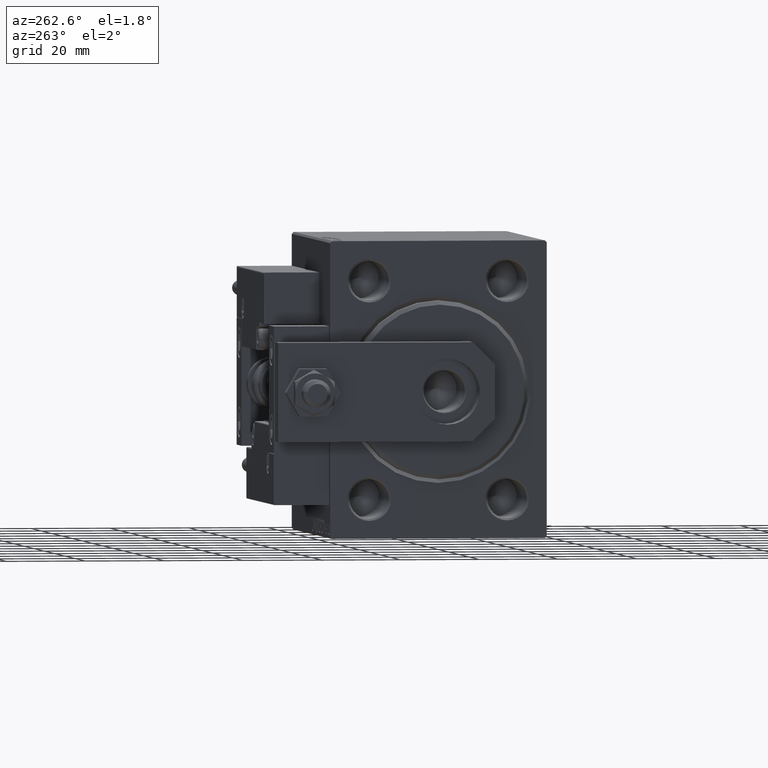
[diagram: clean part render]
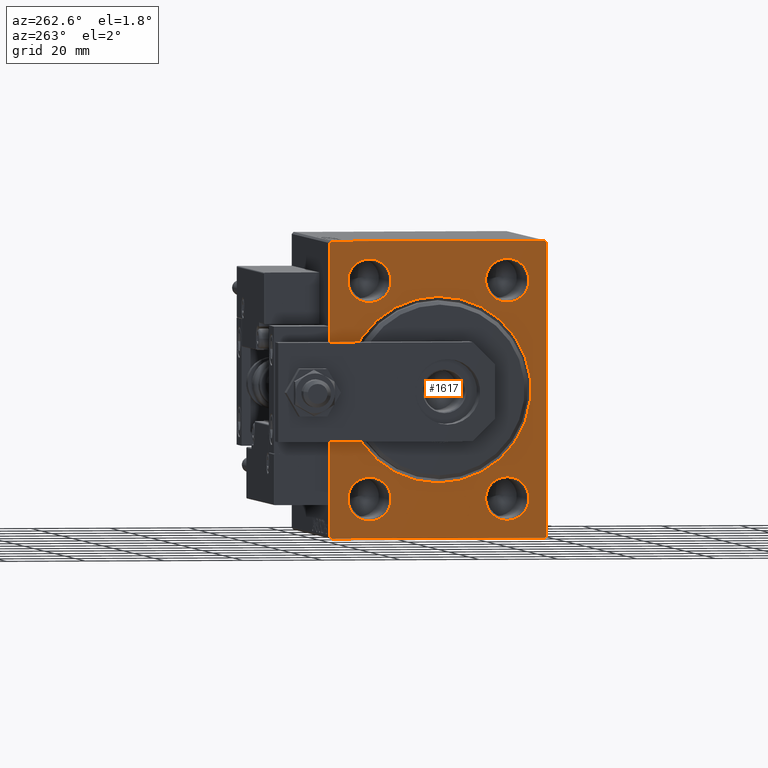
[diagram: same view with one face highlighted and labeled with its STEP entity id]
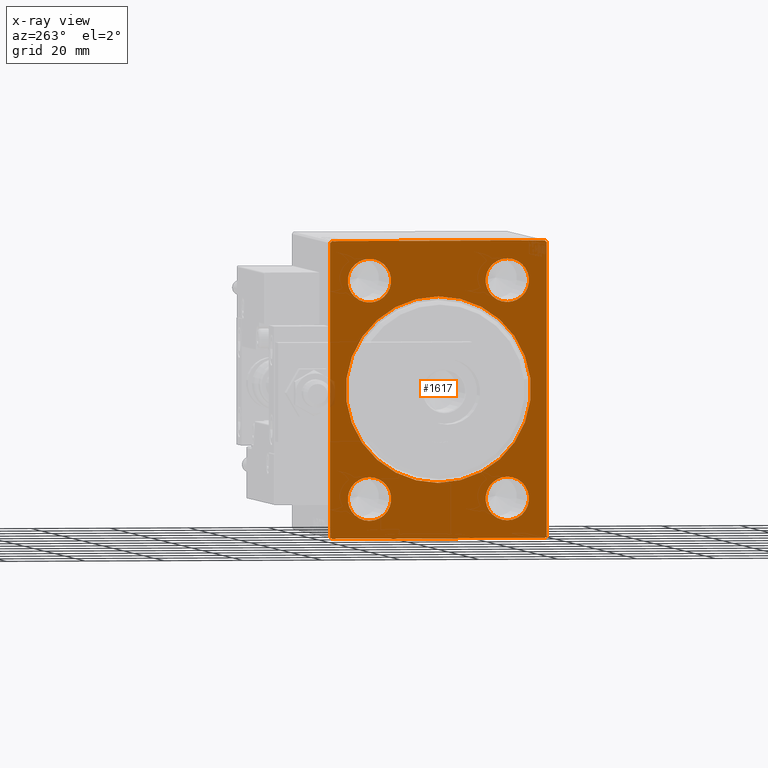
[diagram: x-ray of the same camera — body ghosted, the highlighted face saturated]
A machine part, auxiliary view. The second image highlights one B-rep face of the part: STEP entity #1617.
The next image is the same camera in x-ray: the body ghosted, the highlighted face saturated — about 0% of this face is hidden behind the body in this view.
In plain terms, the highlighted planar face has unit normal (1, 0, 0).
Its self-contained STEP definition (entity closure, byte-faithful):
#394 = EDGE_CURVE ( 'NONE', #22108, #47025, #3828, .T. ) ;
#414 = CARTESIAN_POINT ( 'NONE',  ( 0.000000000000000000, 17.50000000000000000, 27.50000000000000000 ) ) ;
#663 = DIRECTION ( 'NONE',  ( 0.000000000000000000, 0.000000000000000000, -1.000000000000000000 ) ) ;
#668 = DIRECTION ( 'NONE',  ( 0.000000000000000000, 0.000000000000000000, -1.000000000000000000 ) ) ;
#703 = EDGE_CURVE ( 'NONE', #1092, #50315, #22028, .T. ) ;
#710 = ORIENTED_EDGE ( 'NONE', *, *, #39468, .F. ) ;
#1066 = CARTESIAN_POINT ( 'NONE',  ( 0.000000000000000000, 27.00000000000000355, -37.50000000000000000 ) ) ;
#1092 = VERTEX_POINT ( 'NONE', #43969 ) ;
#1216 = CARTESIAN_POINT ( 'NONE',  ( 0.000000000000000000, -17.50000000000000000, 33.00000000000002132 ) ) ;
#1617 = ADVANCED_FACE ( 'NONE', ( #42492, #47404, #15220, #51295, #10808, #19620 ), #34703, .F. ) ;
#1837 = EDGE_CURVE ( 'NONE', #17038, #19998, #32018, .T. ) ;
#1988 = EDGE_CURVE ( 'NONE', #20822, #22173, #9655, .T. ) ;
#2258 = CARTESIAN_POINT ( 'NONE',  ( 0.000000000000000000, -27.49999999999999645, 37.49999999999998579 ) ) ;
#2758 = CARTESIAN_POINT ( 'NONE',  ( 0.000000000000000000, 17.50000000000000000, -21.99999999999997868 ) ) ;
#2997 = DIRECTION ( 'NONE',  ( 0.000000000000000000, 0.000000000000000000, -1.000000000000000000 ) ) ;
#3042 = CARTESIAN_POINT ( 'NONE',  ( 0.000000000000000000, 17.50000000000000000, -27.49999999999999645 ) ) ;
#3453 = VERTEX_POINT ( 'NONE', #50996 ) ;
#3562 = EDGE_CURVE ( 'NONE', #28874, #42873, #9680, .T. ) ;
#3828 = LINE ( 'NONE', #47201, #7904 ) ;
#3956 = ORIENTED_EDGE ( 'NONE', *, *, #30811, .T. ) ;
#4038 = ORIENTED_EDGE ( 'NONE', *, *, #394, .F. ) ;
#4151 = CARTESIAN_POINT ( 'NONE',  ( 0.000000000000000000, 17.50000000000000000, 27.50000000000000000 ) ) ;
#4249 = EDGE_LOOP ( 'NONE', ( #29338, #50350 ) ) ;
#5048 = CARTESIAN_POINT ( 'NONE',  ( 0.000000000000000000, 27.49999999999999645, 37.00000000000001421 ) ) ;
#5438 = AXIS2_PLACEMENT_3D ( 'NONE', #35214, #27168, #11832 ) ;
#6084 = CARTESIAN_POINT ( 'NONE',  ( 0.000000000000000000, -27.49999999999999645, -37.50000000000000000 ) ) ;
#6118 = EDGE_CURVE ( 'NONE', #22173, #20822, #8221, .T. ) ;
#6264 = DIRECTION ( 'NONE',  ( 1.000000000000000000, 0.000000000000000000, 0.000000000000000000 ) ) ;
#6545 = VECTOR ( 'NONE', #9160, 1000.000000000000000 ) ;
#6565 = CARTESIAN_POINT ( 'NONE',  ( 0.000000000000000000, 27.50000000000000355, -37.00000000000000000 ) ) ;
#7660 = DIRECTION ( 'NONE',  ( 1.000000000000000000, 0.000000000000000000, 0.000000000000000000 ) ) ;
#7893 = VERTEX_POINT ( 'NONE', #30202 ) ;
#7904 = VECTOR ( 'NONE', #34496, 1000.000000000000000 ) ;
#8221 = CIRCLE ( 'NONE', #25633, 5.500000000000018652 ) ;
#9160 = DIRECTION ( 'NONE',  ( 0.000000000000000000, -9.251858538542971581E-17, 1.000000000000000000 ) ) ;
#9655 = CIRCLE ( 'NONE', #45206, 5.500000000000018652 ) ;
#9680 = LINE ( 'NONE', #17221, #6545 ) ;
#9691 = EDGE_LOOP ( 'NONE', ( #51104, #3956 ) ) ;
#10212 = CIRCLE ( 'NONE', #20143, 5.500000000000001776 ) ;
#10504 = AXIS2_PLACEMENT_3D ( 'NONE', #46263, #6264, #49893 ) ;
#10564 = CARTESIAN_POINT ( 'NONE',  ( 0.000000000000000000, -17.50000000000000000, -27.49999999999999645 ) ) ;
#10808 = FACE_BOUND ( 'NONE', #40450, .T. ) ;
#11301 = VERTEX_POINT ( 'NONE', #18494 ) ;
#11832 = DIRECTION ( 'NONE',  ( 0.000000000000000000, 0.000000000000000000, -1.000000000000000000 ) ) ;
#12002 = CARTESIAN_POINT ( 'NONE',  ( 0.000000000000000000, -17.50000000000000000, -27.49999999999999645 ) ) ;
#12473 = ORIENTED_EDGE ( 'NONE', *, *, #48640, .T. ) ;
#12565 = CARTESIAN_POINT ( 'NONE',  ( 0.000000000000000000, -17.50000000000000000, 21.99999999999998224 ) ) ;
#13387 = ORIENTED_EDGE ( 'NONE', *, *, #27103, .T. ) ;
#15132 = CARTESIAN_POINT ( 'NONE',  ( 0.000000000000000000, -17.50000000000000000, 27.50000000000000000 ) ) ;
#15220 = FACE_BOUND ( 'NONE', #29397, .T. ) ;
#15840 = ORIENTED_EDGE ( 'NONE', *, *, #16358, .F. ) ;
#15846 = CARTESIAN_POINT ( 'NONE',  ( 0.000000000000000000, 0.000000000000000000, 0.000000000000000000 ) ) ;
#16093 = VERTEX_POINT ( 'NONE', #49104 ) ;
#16261 = AXIS2_PLACEMENT_3D ( 'NONE', #15132, #19531, #51205 ) ;
#16269 = DIRECTION ( 'NONE',  ( 1.000000000000000000, 0.000000000000000000, 0.000000000000000000 ) ) ;
#16358 = EDGE_CURVE ( 'NONE', #24183, #19796, #30317, .T. ) ;
#16640 = EDGE_CURVE ( 'NONE', #11301, #43888, #41771, .T. ) ;
#16718 = CARTESIAN_POINT ( 'NONE',  ( 0.000000000000000000, 27.00000000000001066, 37.50000000000000000 ) ) ;
#16897 = AXIS2_PLACEMENT_3D ( 'NONE', #44053, #40162, #668 ) ;
#17035 = VECTOR ( 'NONE', #44750, 1000.000000000000114 ) ;
#17038 = VERTEX_POINT ( 'NONE', #12565 ) ;
#17221 = CARTESIAN_POINT ( 'NONE',  ( 0.000000000000000000, 27.50000000000000355, -37.50000000000000000 ) ) ;
#17280 = CARTESIAN_POINT ( 'NONE',  ( 0.000000000000000000, 2.877919977996280715E-15, -23.50000000000000355 ) ) ;
#18494 = CARTESIAN_POINT ( 'NONE',  ( 0.000000000000000000, 17.50000000000000000, -33.00000000000001421 ) ) ;
#18777 = AXIS2_PLACEMENT_3D ( 'NONE', #3042, #19146, #23298 ) ;
#19146 = DIRECTION ( 'NONE',  ( 1.000000000000000000, 0.000000000000000000, 0.000000000000000000 ) ) ;
#19236 = VERTEX_POINT ( 'NONE', #1066 ) ;
#19531 = DIRECTION ( 'NONE',  ( 1.000000000000000000, 0.000000000000000000, 0.000000000000000000 ) ) ;
#19620 = FACE_OUTER_BOUND ( 'NONE', #25221, .T. ) ;
#19796 = VERTEX_POINT ( 'NONE', #23070 ) ;
#19998 = VERTEX_POINT ( 'NONE', #1216 ) ;
#20143 = AXIS2_PLACEMENT_3D ( 'NONE', #414, #16269, #663 ) ;
#20514 = DIRECTION ( 'NONE',  ( 0.000000000000000000, 0.000000000000000000, -1.000000000000000000 ) ) ;
#20822 = VERTEX_POINT ( 'NONE', #31701 ) ;
#22028 = CIRCLE ( 'NONE', #31152, 23.50000000000000355 ) ;
#22108 = VERTEX_POINT ( 'NONE', #47035 ) ;
#22173 = VERTEX_POINT ( 'NONE', #47545 ) ;
#22258 = DIRECTION ( 'NONE',  ( 0.000000000000000000, 0.000000000000000000, -1.000000000000000000 ) ) ;
#23070 = CARTESIAN_POINT ( 'NONE',  ( 0.000000000000000000, -27.49999999999999645, -37.00000000000000000 ) ) ;
#23112 = CARTESIAN_POINT ( 'NONE',  ( 0.000000000000000000, -26.99999999999998224, 37.49999999999998579 ) ) ;
#23298 = DIRECTION ( 'NONE',  ( 0.000000000000000000, 0.000000000000000000, -1.000000000000000000 ) ) ;
#23889 = ORIENTED_EDGE ( 'NONE', *, *, #30781, .T. ) ;
#24183 = VERTEX_POINT ( 'NONE', #44829 ) ;
#24549 = EDGE_CURVE ( 'NONE', #22108, #42873, #40853, .T. ) ;
#24721 = CARTESIAN_POINT ( 'NONE',  ( 0.000000000000000000, -26.99999999999999645, -37.50000000000000000 ) ) ;
#24895 = VECTOR ( 'NONE', #39225, 1000.000000000000114 ) ;
#25221 = EDGE_LOOP ( 'NONE', ( #15840, #47504, #4038, #49388, #41512, #13387, #710, #34172 ) ) ;
#25413 = ORIENTED_EDGE ( 'NONE', *, *, #1837, .T. ) ;
#25633 = AXIS2_PLACEMENT_3D ( 'NONE', #12002, #27845, #43692 ) ;
#25752 = CIRCLE ( 'NONE', #34877, 23.50000000000000355 ) ;
#26091 = DIRECTION ( 'NONE',  ( 0.000000000000000000, 1.000000000000000000, 0.000000000000000000 ) ) ;
#26329 = ORIENTED_EDGE ( 'NONE', *, *, #26606, .T. ) ;
#26606 = EDGE_CURVE ( 'NONE', #43888, #11301, #41169, .T. ) ;
#27103 = EDGE_CURVE ( 'NONE', #28874, #19236, #42163, .T. ) ;
#27168 = DIRECTION ( 'NONE',  ( 1.000000000000000000, 0.000000000000000000, 0.000000000000000000 ) ) ;
#27845 = DIRECTION ( 'NONE',  ( 1.000000000000000000, 0.000000000000000000, 0.000000000000000000 ) ) ;
#28874 = VERTEX_POINT ( 'NONE', #43213 ) ;
#29054 = VECTOR ( 'NONE', #40579, 1000.000000000000114 ) ;
#29338 = ORIENTED_EDGE ( 'NONE', *, *, #1988, .T. ) ;
#29397 = EDGE_LOOP ( 'NONE', ( #12473, #25413 ) ) ;
#30202 = CARTESIAN_POINT ( 'NONE',  ( 0.000000000000000000, 17.50000000000000000, 33.00000000000000711 ) ) ;
#30317 = LINE ( 'NONE', #2258, #44258 ) ;
#30435 = EDGE_CURVE ( 'NONE', #16093, #19796, #35658, .T. ) ;
#30556 = EDGE_CURVE ( 'NONE', #24183, #47025, #50898, .T. ) ;
#30781 = EDGE_CURVE ( 'NONE', #50315, #1092, #25752, .T. ) ;
#30806 = DIRECTION ( 'NONE',  ( 1.000000000000000000, 0.000000000000000000, 0.000000000000000000 ) ) ;
#30811 = EDGE_CURVE ( 'NONE', #3453, #7893, #37363, .T. ) ;
#31152 = AXIS2_PLACEMENT_3D ( 'NONE', #38328, #7660, #2997 ) ;
#31701 = CARTESIAN_POINT ( 'NONE',  ( 0.000000000000000000, -17.50000000000000000, -21.99999999999997868 ) ) ;
#31950 = DIRECTION ( 'NONE',  ( 1.000000000000000000, 0.000000000000000000, 0.000000000000000000 ) ) ;
#32018 = CIRCLE ( 'NONE', #16261, 5.500000000000022204 ) ;
#32049 = CIRCLE ( 'NONE', #10504, 5.500000000000022204 ) ;
#34069 = EDGE_LOOP ( 'NONE', ( #36612, #23889 ) ) ;
#34172 = ORIENTED_EDGE ( 'NONE', *, *, #30435, .T. ) ;
#34363 = DIRECTION ( 'NONE',  ( 0.000000000000000000, -0.7071067811865474617, -0.7071067811865474617 ) ) ;
#34496 = DIRECTION ( 'NONE',  ( 0.000000000000000000, -1.000000000000000000, -2.523234146875355998E-16 ) ) ;
#34703 = PLANE ( 'NONE',  #5438 ) ;
#34877 = AXIS2_PLACEMENT_3D ( 'NONE', #15846, #47516, #20514 ) ;
#35214 = CARTESIAN_POINT ( 'NONE',  ( 0.000000000000000000, 0.000000000000000000, 0.000000000000000000 ) ) ;
#35658 = LINE ( 'NONE', #24721, #29054 ) ;
#35849 = DIRECTION ( 'NONE',  ( 0.000000000000000000, 0.000000000000000000, -1.000000000000000000 ) ) ;
#36612 = ORIENTED_EDGE ( 'NONE', *, *, #703, .T. ) ;
#37183 = ORIENTED_EDGE ( 'NONE', *, *, #16640, .T. ) ;
#37363 = CIRCLE ( 'NONE', #48146, 5.500000000000001776 ) ;
#38328 = CARTESIAN_POINT ( 'NONE',  ( 0.000000000000000000, 0.000000000000000000, 0.000000000000000000 ) ) ;
#39225 = DIRECTION ( 'NONE',  ( -0.000000000000000000, 0.7071067811865474617, 0.7071067811865474617 ) ) ;
#39442 = EDGE_CURVE ( 'NONE', #7893, #3453, #10212, .T. ) ;
#39468 = EDGE_CURVE ( 'NONE', #16093, #19236, #41680, .T. ) ;
#39544 = VECTOR ( 'NONE', #34363, 1000.000000000000114 ) ;
#40162 = DIRECTION ( 'NONE',  ( 1.000000000000000000, 0.000000000000000000, 0.000000000000000000 ) ) ;
#40450 = EDGE_LOOP ( 'NONE', ( #26329, #37183 ) ) ;
#40579 = DIRECTION ( 'NONE',  ( -0.000000000000000000, -0.7071067811865474617, 0.7071067811865474617 ) ) ;
#40853 = LINE ( 'NONE', #16718, #17035 ) ;
#41169 = CIRCLE ( 'NONE', #18777, 5.500000000000018652 ) ;
#41512 = ORIENTED_EDGE ( 'NONE', *, *, #3562, .F. ) ;
#41680 = LINE ( 'NONE', #6084, #44216 ) ;
#41771 = CIRCLE ( 'NONE', #16897, 5.500000000000018652 ) ;
#42163 = LINE ( 'NONE', #6565, #39544 ) ;
#42492 = FACE_BOUND ( 'NONE', #34069, .T. ) ;
#42869 = CARTESIAN_POINT ( 'NONE',  ( 0.000000000000000000, -27.49999999999999645, 36.99999999999997158 ) ) ;
#42873 = VERTEX_POINT ( 'NONE', #5048 ) ;
#43213 = CARTESIAN_POINT ( 'NONE',  ( 0.000000000000000000, 27.50000000000000355, -37.00000000000000000 ) ) ;
#43692 = DIRECTION ( 'NONE',  ( 0.000000000000000000, 0.000000000000000000, -1.000000000000000000 ) ) ;
#43888 = VERTEX_POINT ( 'NONE', #2758 ) ;
#43969 = CARTESIAN_POINT ( 'NONE',  ( 0.000000000000000000, 0.000000000000000000, 23.50000000000000355 ) ) ;
#44053 = CARTESIAN_POINT ( 'NONE',  ( 0.000000000000000000, 17.50000000000000000, -27.49999999999999645 ) ) ;
#44216 = VECTOR ( 'NONE', #26091, 1000.000000000000000 ) ;
#44258 = VECTOR ( 'NONE', #22258, 1000.000000000000000 ) ;
#44750 = DIRECTION ( 'NONE',  ( -0.000000000000000000, 0.7071067811865474617, -0.7071067811865474617 ) ) ;
#44829 = CARTESIAN_POINT ( 'NONE',  ( 0.000000000000000000, -27.49999999999999645, 36.99999999999997158 ) ) ;
#45206 = AXIS2_PLACEMENT_3D ( 'NONE', #10564, #30806, #50780 ) ;
#46263 = CARTESIAN_POINT ( 'NONE',  ( 0.000000000000000000, -17.50000000000000000, 27.50000000000000000 ) ) ;
#47025 = VERTEX_POINT ( 'NONE', #23112 ) ;
#47035 = CARTESIAN_POINT ( 'NONE',  ( 0.000000000000000000, 27.00000000000001066, 37.50000000000000000 ) ) ;
#47201 = CARTESIAN_POINT ( 'NONE',  ( 0.000000000000000000, 27.49999999999999645, 37.50000000000000000 ) ) ;
#47404 = FACE_BOUND ( 'NONE', #4249, .T. ) ;
#47504 = ORIENTED_EDGE ( 'NONE', *, *, #30556, .T. ) ;
#47516 = DIRECTION ( 'NONE',  ( 1.000000000000000000, 0.000000000000000000, 0.000000000000000000 ) ) ;
#47545 = CARTESIAN_POINT ( 'NONE',  ( 0.000000000000000000, -17.50000000000000000, -33.00000000000001421 ) ) ;
#48146 = AXIS2_PLACEMENT_3D ( 'NONE', #4151, #31950, #35849 ) ;
#48640 = EDGE_CURVE ( 'NONE', #19998, #17038, #32049, .T. ) ;
#49104 = CARTESIAN_POINT ( 'NONE',  ( 0.000000000000000000, -26.99999999999999645, -37.50000000000000000 ) ) ;
#49388 = ORIENTED_EDGE ( 'NONE', *, *, #24549, .T. ) ;
#49893 = DIRECTION ( 'NONE',  ( 0.000000000000000000, 0.000000000000000000, -1.000000000000000000 ) ) ;
#50315 = VERTEX_POINT ( 'NONE', #17280 ) ;
#50350 = ORIENTED_EDGE ( 'NONE', *, *, #6118, .T. ) ;
#50780 = DIRECTION ( 'NONE',  ( 0.000000000000000000, 0.000000000000000000, -1.000000000000000000 ) ) ;
#50898 = LINE ( 'NONE', #42869, #24895 ) ;
#50996 = CARTESIAN_POINT ( 'NONE',  ( 0.000000000000000000, 17.50000000000000000, 21.99999999999999645 ) ) ;
#51104 = ORIENTED_EDGE ( 'NONE', *, *, #39442, .T. ) ;
#51205 = DIRECTION ( 'NONE',  ( 0.000000000000000000, 0.000000000000000000, -1.000000000000000000 ) ) ;
#51295 = FACE_BOUND ( 'NONE', #9691, .T. ) ;